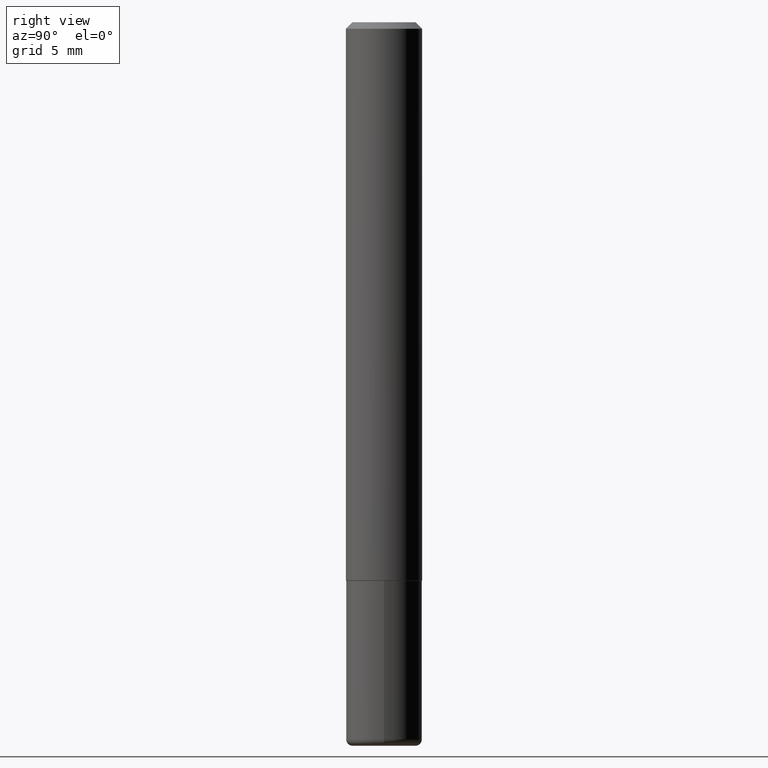
[diagram: clean part render]
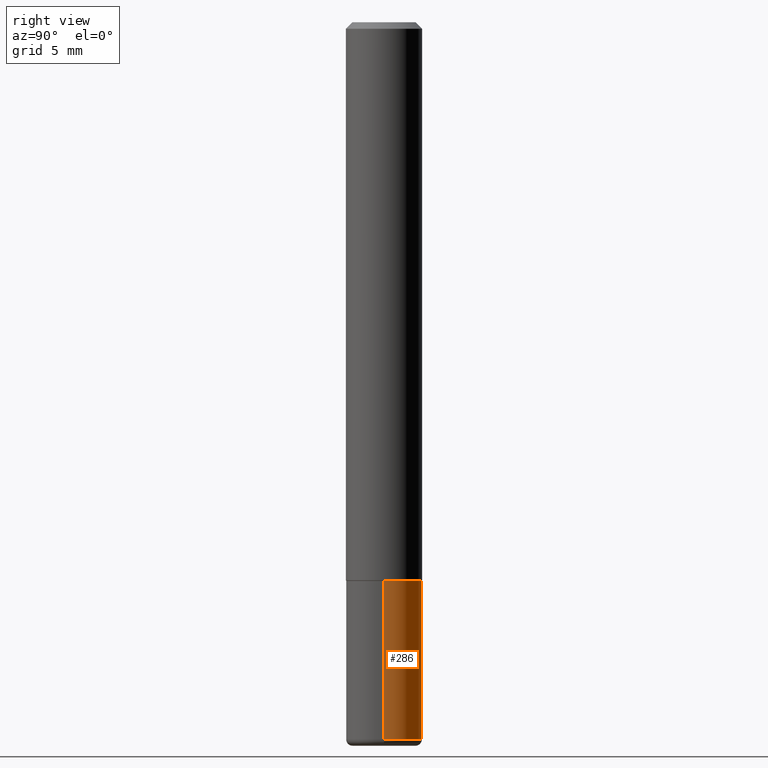
[diagram: same view with one face highlighted and labeled with its STEP entity id]
A machine part, right view. The second image highlights one B-rep face of the part: STEP entity #286.
In plain terms, the highlighted cylindrical surface (partial cylindrical patch) has radius 2.9997 mm, axis along (-0, 0, 1).
Its self-contained STEP definition (entity closure, byte-faithful):
#6 = CIRCLE ( 'NONE', #399, 0.1181000000000000383 ) ;
#7 = AXIS2_PLACEMENT_3D ( 'NONE', #192, #72, #360 ) ;
#38 = EDGE_CURVE ( 'NONE', #168, #334, #128, .T. ) ;
#45 = VECTOR ( 'NONE', #306, 39.37007874015748143 ) ;
#51 = ORIENTED_EDGE ( 'NONE', *, *, #230, .T. ) ;
#57 = ORIENTED_EDGE ( 'NONE', *, *, #401, .F. ) ;
#60 = CARTESIAN_POINT ( 'NONE',  ( -0.1181000000000000522, -6.927300119190015324E-15, -2.224399999999999711 ) ) ;
#71 = FACE_OUTER_BOUND ( 'NONE', #151, .T. ) ;
#72 = DIRECTION ( 'NONE',  ( -2.445468806185136597E-29, 3.491481338843145583E-15, 1.000000000000000000 ) ) ;
#75 = CIRCLE ( 'NONE', #7, 0.1181000000000000383 ) ;
#107 = EDGE_CURVE ( 'NONE', #206, #334, #6, .T. ) ;
#109 = LINE ( 'NONE', #302, #45 ) ;
#128 = LINE ( 'NONE', #154, #163 ) ;
#151 = EDGE_LOOP ( 'NONE', ( #51, #209, #407, #57 ) ) ;
#154 = CARTESIAN_POINT ( 'NONE',  ( -0.1181000000000000383, 8.391509709326785915E-16, -5.809262341591045886E-30 ) ) ;
#156 = DIRECTION ( 'NONE',  ( -2.445468806185136597E-29, 3.491481338843145583E-15, 1.000000000000000000 ) ) ;
#157 = DIRECTION ( 'NONE',  ( -2.445468806185136877E-29, 3.491481338843145188E-15, 1.000000000000000000 ) ) ;
#163 = VECTOR ( 'NONE', #157, 39.37007874015748143 ) ;
#167 = CARTESIAN_POINT ( 'NONE',  ( -0.1181000000000000383, -6.068221135767657525E-15, -1.732299999999999729 ) ) ;
#168 = VERTEX_POINT ( 'NONE', #60 ) ;
#186 = DIRECTION ( 'NONE',  ( 1.000000000000000000, -6.982962677686270655E-15, 0.000000000000000000 ) ) ;
#192 = CARTESIAN_POINT ( 'NONE',  ( 5.439700812478218014E-29, -7.766451090122692732E-15, -2.224399999999999711 ) ) ;
#206 = VERTEX_POINT ( 'NONE', #297 ) ;
#209 = ORIENTED_EDGE ( 'NONE', *, *, #38, .T. ) ;
#220 = AXIS2_PLACEMENT_3D ( 'NONE', #263, #363, #332 ) ;
#224 = CARTESIAN_POINT ( 'NONE',  ( 4.236285612954511832E-29, -6.048293123277980289E-15, -1.732299999999999729 ) ) ;
#229 = CARTESIAN_POINT ( 'NONE',  ( 0.1181000000000000522, -8.591138982357440995E-15, -2.224399999999999711 ) ) ;
#230 = EDGE_CURVE ( 'NONE', #231, #168, #75, .T. ) ;
#231 = VERTEX_POINT ( 'NONE', #229 ) ;
#235 = CYLINDRICAL_SURFACE ( 'NONE', #220, 0.1181000000000000383 ) ;
#263 = CARTESIAN_POINT ( 'NONE',  ( 0.000000000000000000, 0.000000000000000000, 0.000000000000000000 ) ) ;
#286 = ADVANCED_FACE ( 'NONE', ( #71 ), #235, .T. ) ;
#297 = CARTESIAN_POINT ( 'NONE',  ( 0.1181000000000000383, -6.872981015512729341E-15, -1.732299999999999729 ) ) ;
#302 = CARTESIAN_POINT ( 'NONE',  ( 0.1181000000000000383, -8.246878922347483612E-16, 5.758764772215001842E-30 ) ) ;
#306 = DIRECTION ( 'NONE',  ( -2.445468806185136877E-29, 3.491481338843145188E-15, 1.000000000000000000 ) ) ;
#332 = DIRECTION ( 'NONE',  ( 1.000000000000000000, -6.982962677686266711E-15, 4.876176775795935793E-29 ) ) ;
#334 = VERTEX_POINT ( 'NONE', #167 ) ;
#360 = DIRECTION ( 'NONE',  ( 1.000000000000000000, -6.982962677686262766E-15, 0.000000000000000000 ) ) ;
#363 = DIRECTION ( 'NONE',  ( -2.445468806185136597E-29, 3.491481338843145583E-15, 1.000000000000000000 ) ) ;
#399 = AXIS2_PLACEMENT_3D ( 'NONE', #224, #156, #186 ) ;
#401 = EDGE_CURVE ( 'NONE', #231, #206, #109, .T. ) ;
#407 = ORIENTED_EDGE ( 'NONE', *, *, #107, .F. ) ;